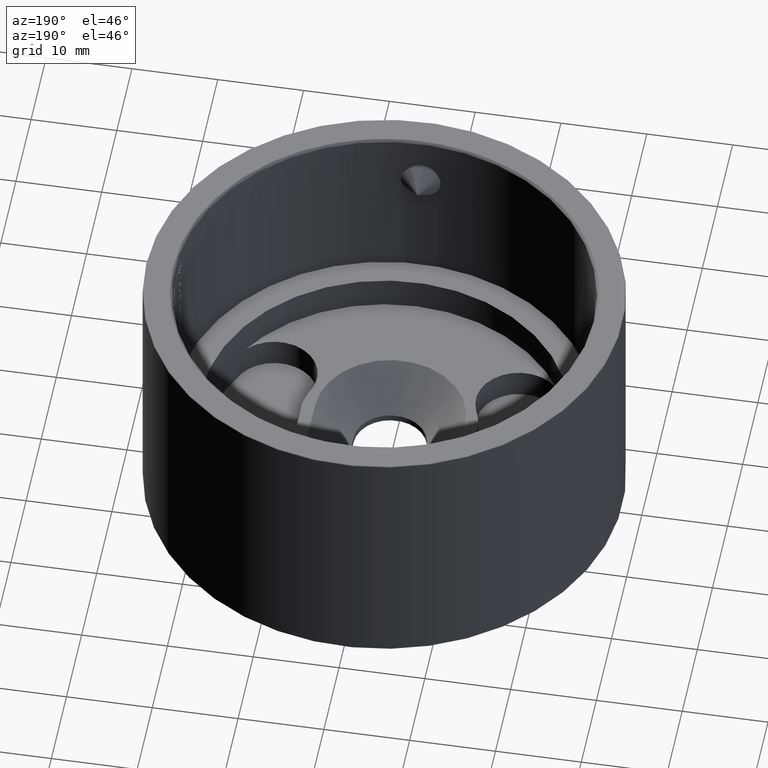
[diagram: clean part render]
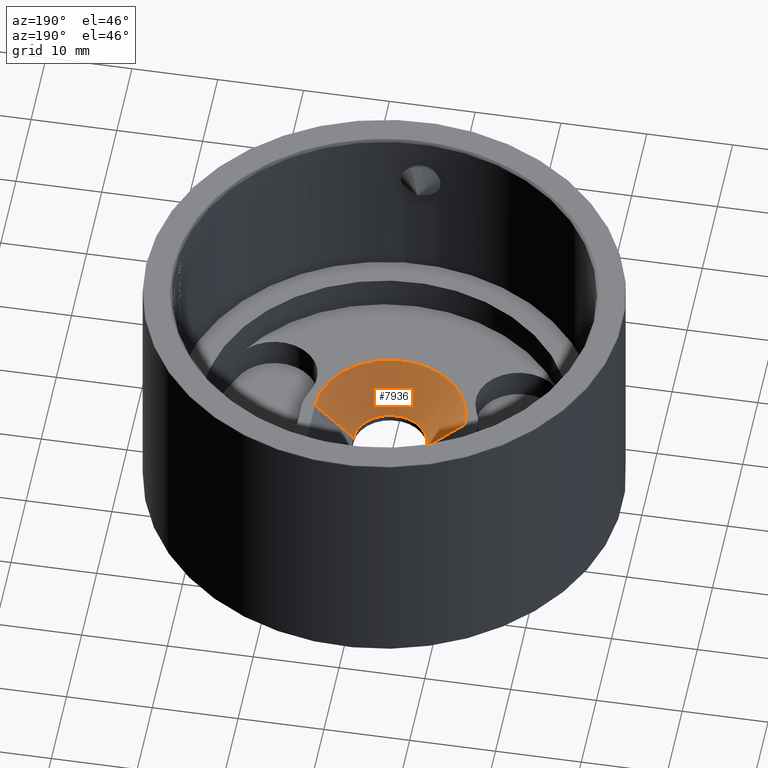
[diagram: same view with one face highlighted and labeled with its STEP entity id]
A machine part, auxiliary view. The second image highlights one B-rep face of the part: STEP entity #7936.
In plain terms, the highlighted conical surface has half-angle 45 deg.
Its self-contained STEP definition (entity closure, byte-faithful):
#179 = CIRCLE ( 'NONE', #5400, 4.249999999999998224 ) ;
#373 = ORIENTED_EDGE ( 'NONE', *, *, #11742, .F. ) ;
#467 = AXIS2_PLACEMENT_3D ( 'NONE', #5700, #3065, #10671 ) ;
#554 = DIRECTION ( 'NONE',  ( -0.000000000000000000, -0.000000000000000000, 1.000000000000000000 ) ) ;
#885 = CARTESIAN_POINT ( 'NONE',  ( -4.249999999999985789, -3.750000000000014655, 1.600000000000001643 ) ) ;
#1491 = DIRECTION ( 'NONE',  ( 1.000000000000000000, 0.000000000000000000, 0.000000000000000000 ) ) ;
#2556 = EDGE_CURVE ( 'NONE', #12290, #15803, #11995, .T. ) ;
#3043 = EDGE_CURVE ( 'NONE', #7431, #8107, #179, .T. ) ;
#3065 = DIRECTION ( 'NONE',  ( -0.000000000000000000, -0.000000000000000000, 1.000000000000000000 ) ) ;
#3998 = DIRECTION ( 'NONE',  ( 0.7071067811865479058, 2.468691373398919659E-15, -0.7071067811865472397 ) ) ;
#4199 = CARTESIAN_POINT ( 'NONE',  ( -8.749999999999994671, -3.750000000000030198, 6.099999999999999645 ) ) ;
#4398 = ORIENTED_EDGE ( 'NONE', *, *, #2556, .T. ) ;
#4509 = DIRECTION ( 'NONE',  ( 1.000000000000000000, 0.000000000000000000, 0.000000000000000000 ) ) ;
#5140 = CARTESIAN_POINT ( 'NONE',  ( 1.309305502066175008E-14, -3.750000000000000000, -2.649999999999993694 ) ) ;
#5400 = AXIS2_PLACEMENT_3D ( 'NONE', #9217, #11761, #1491 ) ;
#5700 = CARTESIAN_POINT ( 'NONE',  ( 1.309305502066175008E-14, -3.750000000000000000, 6.100000000000000533 ) ) ;
#7105 = VECTOR ( 'NONE', #3998, 999.9999999999998863 ) ;
#7431 = VERTEX_POINT ( 'NONE', #885 ) ;
#7678 = CARTESIAN_POINT ( 'NONE',  ( 4.250000000000011546, -3.749999999999984901, 1.600000000000001643 ) ) ;
#7712 = LINE ( 'NONE', #5140, #7105 ) ;
#7936 = ADVANCED_FACE ( 'NONE', ( #9529 ), #11965, .F. ) ;
#8075 = DIRECTION ( 'NONE',  ( -0.7071067811865479058, 0.000000000000000000, -0.7071067811865472397 ) ) ;
#8107 = VERTEX_POINT ( 'NONE', #7678 ) ;
#9217 = CARTESIAN_POINT ( 'NONE',  ( 1.309305502066175008E-14, -3.750000000000000000, 1.600000000000001643 ) ) ;
#9289 = CARTESIAN_POINT ( 'NONE',  ( 4.250000000000011546, -3.750000000000000000, 1.600000000000001643 ) ) ;
#9529 = FACE_OUTER_BOUND ( 'NONE', #11365, .T. ) ;
#10671 = DIRECTION ( 'NONE',  ( 1.000000000000000000, 0.000000000000000000, 0.000000000000000000 ) ) ;
#11365 = EDGE_LOOP ( 'NONE', ( #4398, #13855, #15917, #373 ) ) ;
#11691 = VECTOR ( 'NONE', #8075, 999.9999999999998863 ) ;
#11742 = EDGE_CURVE ( 'NONE', #12290, #7431, #7712, .T. ) ;
#11761 = DIRECTION ( 'NONE',  ( -0.000000000000000000, -0.000000000000000000, 1.000000000000000000 ) ) ;
#11916 = CARTESIAN_POINT ( 'NONE',  ( 1.309305502066175008E-14, -3.750000000000000000, 6.100000000000000533 ) ) ;
#11965 = CONICAL_SURFACE ( 'NONE', #15980, 8.750000000000000000, 0.7853981633974487231 ) ;
#11995 = CIRCLE ( 'NONE', #467, 8.750000000000000000 ) ;
#12290 = VERTEX_POINT ( 'NONE', #4199 ) ;
#13855 = ORIENTED_EDGE ( 'NONE', *, *, #15851, .T. ) ;
#14224 = CARTESIAN_POINT ( 'NONE',  ( 8.750000000000014211, -3.750000000000000000, 6.100000000000000533 ) ) ;
#15118 = LINE ( 'NONE', #9289, #11691 ) ;
#15803 = VERTEX_POINT ( 'NONE', #14224 ) ;
#15851 = EDGE_CURVE ( 'NONE', #15803, #8107, #15118, .T. ) ;
#15917 = ORIENTED_EDGE ( 'NONE', *, *, #3043, .F. ) ;
#15980 = AXIS2_PLACEMENT_3D ( 'NONE', #11916, #554, #4509 ) ;